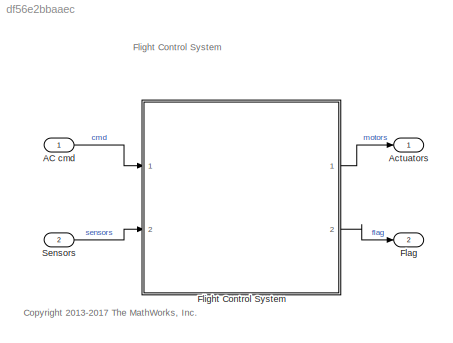
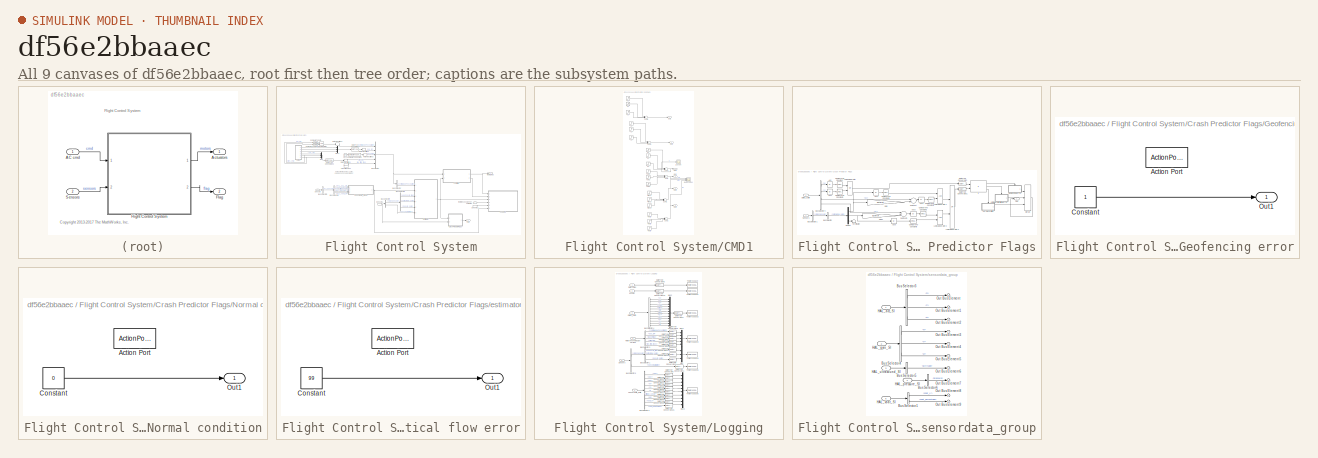
[diagram: thumbnail index - all 9 canvases of the model, root first then tree order]
MODEL slx_df56e2bbaaec
KIND model
CONFIG AbsTol = auto
CONFIG EnableMultiTasking = on
CONFIG FixedStep = Ts
CONFIG MaxStep = auto
CONFIG MinStep = auto
CONFIG RelTol = 1e-3
CONFIG SampleTimeConstraint = Unconstrained
CONFIG Solver = ode3
CONFIG SolverName = ode3
CONFIG StartTime = 0
CONFIG StopTime = TFinal
BLOCK [Inport] AC cmd
  BusOutputAsStruct = on
  IconDisplay = Port number
  OutDataTypeStr = Bus: CommandBus
BLOCK [Outport] Actuators
  IconDisplay = Port number
  OutDataTypeStr = single
  PortDimensions = 4
BLOCK [Outport] Flag
  IconDisplay = Port number
  OutDataTypeStr = uint8
  Port = 2
  PortDimensions = 1
BLOCK [SubSystem] Flight Control System
  Ports = [2, 2]
  RTWSystemCode = Reusable function
  RequestExecContextInheritance = off
BLOCK [BusCreator] Flight Control System/Bus Creator
  DisplayOption = bar
  InheritFromInputs = on
  Inputs = 5
  NonVirtualBus = on
  OutDataTypeStr = Bus: CommandBus
  Ports = [5, 1]
BLOCK [BusSelector] Flight Control System/Bus Selector
  OutputAsBus = off
  OutputSignals = controlModePosVSOrient
  Ports = [1, 1]
BLOCK [BusSelector] Flight Control System/Bus Selector1
  OutputAsBus = off
  OutputSignals = usePosVIS_flag,opticalFlow_data,posVIS_data
  Ports = [1, 3]
BLOCK [BusSelector] Flight Control System/Bus Selector2
  OutputAsBus = off
  OutputSignals = HAL_acc_SI,HAL_gyro_SI,HAL_ultrasound_SI,HAL_pressure_SI,HAL_vbat_SI
  Ports = [1, 5]
BLOCK [BusSelector] Flight Control System/Bus Selector3
  OutputAsBus = off
  OutputSignals = HALSensors
  Ports = [1, 1]
BLOCK [BusSelector] Flight Control System/Bus Selector4
  OutputAsBus = off
  OutputSignals = VisionSensors,SensorCalibration
  Ports = [1, 2]
BLOCK [SubSystem] Flight Control System/CMD1
  InitFcn = IntCmdFcn
  Ports = [0, 6]
  RequestExecContextInheritance = off
BLOCK [Outport] Flight Control System/CMD1/Out1
  IconDisplay = Port number
BLOCK [Outport] Flight Control System/CMD1/Out2
  IconDisplay = Port number
  Port = 2
BLOCK [Outport] Flight Control System/CMD1/Out3
  IconDisplay = Port number
  Port = 3
BLOCK [Outport] Flight Control System/CMD1/Out4
  IconDisplay = Port number
  Port = 4
BLOCK [Outport] Flight Control System/CMD1/Out5
  IconDisplay = Port number
  Port = 5
BLOCK [Outport] Flight Control System/CMD1/Out6
  IconDisplay = Port number
  Port = 6
BLOCK [Step] Flight Control System/CMD1/Pitch1
  After = Pitch1Value
  SampleTime = Ts
  Time = Pitch1StepTime
BLOCK [Step] Flight Control System/CMD1/Pitch2
  After = Pitch2Value
  SampleTime = Ts
  Time = Pitch2StepTime
BLOCK [Step] Flight Control System/CMD1/Pitch3
  After = Pitch3Value
  SampleTime = Ts
  Time = Pitch3StepTime
BLOCK [Step] Flight Control System/CMD1/Roll1
  After = Roll1Value
  SampleTime = Ts
  Time = Roll1StepTime
BLOCK [Step] Flight Control System/CMD1/Roll2
  After = Roll2Value
  SampleTime = Ts
  Time = Roll2StepTime
BLOCK [Step] Flight Control System/CMD1/Roll3
  After = Roll3Value
  SampleTime = Ts
  Time = Roll3StepTime
BLOCK [Sum] Flight Control System/CMD1/Sum
  InputSameDT = off
  Inputs = +++
  OutDataTypeStr = Inherit: Inherit via internal rule
  Ports = [3, 1]
  SaturateOnIntegerOverflow = off
BLOCK [Sum] Flight Control System/CMD1/Sum1
  InputSameDT = off
  Inputs = +++
  OutDataTypeStr = Inherit: Inherit via internal rule
  Ports = [3, 1]
  SaturateOnIntegerOverflow = off
BLOCK [Sum] Flight Control System/CMD1/Sum2
  InputSameDT = off
  Inputs = +++
  OutDataTypeStr = Inherit: Inherit via internal rule
  Ports = [3, 1]
  SaturateOnIntegerOverflow = off
BLOCK [Sum] Flight Control System/CMD1/Sum3
  InputSameDT = off
  Inputs = +++
  OutDataTypeStr = Inherit: Inherit via internal rule
  Ports = [3, 1]
  SaturateOnIntegerOverflow = off
BLOCK [Sum] Flight Control System/CMD1/Sum4
  InputSameDT = off
  Inputs = +++
  OutDataTypeStr = Inherit: Inherit via internal rule
  Ports = [3, 1]
  SaturateOnIntegerOverflow = off
BLOCK [Sum] Flight Control System/CMD1/Sum5
  InputSameDT = off
  Inputs = +++
  OutDataTypeStr = Inherit: Inherit via internal rule
  Ports = [3, 1]
  SaturateOnIntegerOverflow = off
BLOCK [Step] Flight Control System/CMD1/X1
  After = X1Value
  SampleTime = 0
  Time = X1StepTime
BLOCK [Step] Flight Control System/CMD1/X2
  After = X2Value
  SampleTime = 0
  Time = X2StepTime
BLOCK [Step] Flight Control System/CMD1/X3
  After = X3Value
  SampleTime = 0
  Time = X3StepTime
BLOCK [Step] Flight Control System/CMD1/Y1
  After = Y1Value
  SampleTime = 0
  Time = Y1StepTime
BLOCK [Step] Flight Control System/CMD1/Y2
  After = Y2Value
  SampleTime = 0
  Time = Y2StepTime
BLOCK [Step] Flight Control System/CMD1/Y3
  After = Y3Value
  SampleTime = 0
  Time = Y3StepTime
BLOCK [Step] Flight Control System/CMD1/Yaw1
  After = Yaw1Value
  SampleTime = Ts
  Time = Yaw1StepTime
BLOCK [Step] Flight Control System/CMD1/Yaw2
  After = Yaw2Value
  SampleTime = Ts
  Time = Yaw2StepTime
BLOCK [Step] Flight Control System/CMD1/Yaw3
  After = Yaw3Value
  SampleTime = Ts
  Time = Yaw3StepTime
BLOCK [Scope] Flight Control System/CMD1/Z Scope
  Floating = off
  NumInputPorts = 1
  Ports = [1]
  ScopeSpecificationString = Simulink.scopes.TimeScopeBlockCfg('CurrentConfiguration', extmgr.ConfigurationSet(extmgr.Configuration('Core','General UI',true,'FigureColor',[1 1 1]),extmgr.Configuration('Core','Source UI',true),extmgr.Configuration('Sources','WiredSimulink',true,'DataLoggingVariableName','ScopeData1'),extmgr.Configuration('Visuals','Time Domain',true,'SerializedDisplays',{struct('MinYLimReal','-1.00000','MaxYLi...<+2286ch>
BLOCK [Step] Flight Control System/CMD1/Z1
  After = Z1Value
  SampleTime = 0
  Time = Z1StepTime
BLOCK [Step] Flight Control System/CMD1/Z2
  After = Z2Value
  SampleTime = 0
  Time = Z2StepTime
BLOCK [Step] Flight Control System/CMD1/Z3
  After = Z3Value
  SampleTime = 0
  Time = Z3StepTime
BLOCK [Scope] Flight Control System/CMD1/deg Scope1
  Floating = off
  NumInputPorts = 3
  Ports = [3]
  ScopeSpecificationString = Simulink.scopes.TimeScopeBlockCfg('CurrentConfiguration', extmgr.ConfigurationSet(extmgr.Configuration('Core','General UI',true,'FigureColor',[1 1 1]),extmgr.Configuration('Core','Source UI',true),extmgr.Configuration('Sources','WiredSimulink',true,'DataLoggingVariableName','ScopeData2'),extmgr.Configuration('Visuals','Time Domain',true,'SerializedDisplays',{struct('MinYLimReal','-1.00000','MaxYLi...<+2302ch>
BLOCK [Clock] Flight Control System/Clock
BLOCK [Reference] Flight Control System/Compare To Constant  REF=simulink/Logic and Bit
Operations/Compare
To Constant
  Ports = [1, 1]
  SourceBlock = simulink/Logic and Bit\nOperations/Compare\nTo Constant
  SourceProductBaseCode = SL
  SourceProductName = Simulink
  SourceType = Compare To Constant
BLOCK [Reference] Flight Control System/Compare To Zero  REF=simulink/Logic and Bit
Operations/Compare
To Zero
  Ports = [1, 1]
  SourceBlock = simulink/Logic and Bit\nOperations/Compare\nTo Zero
  SourceProductBaseCode = SL
  SourceProductName = Simulink
  SourceType = Compare To Zero
BLOCK [Reference] Flight Control System/Compare To Zero1  REF=simulink/Logic and Bit
Operations/Compare
To Zero
  Ports = [1, 1]
  SourceBlock = simulink/Logic and Bit\nOperations/Compare\nTo Zero
  SourceProductBaseCode = SL
  SourceProductName = Simulink
  SourceType = Compare To Zero
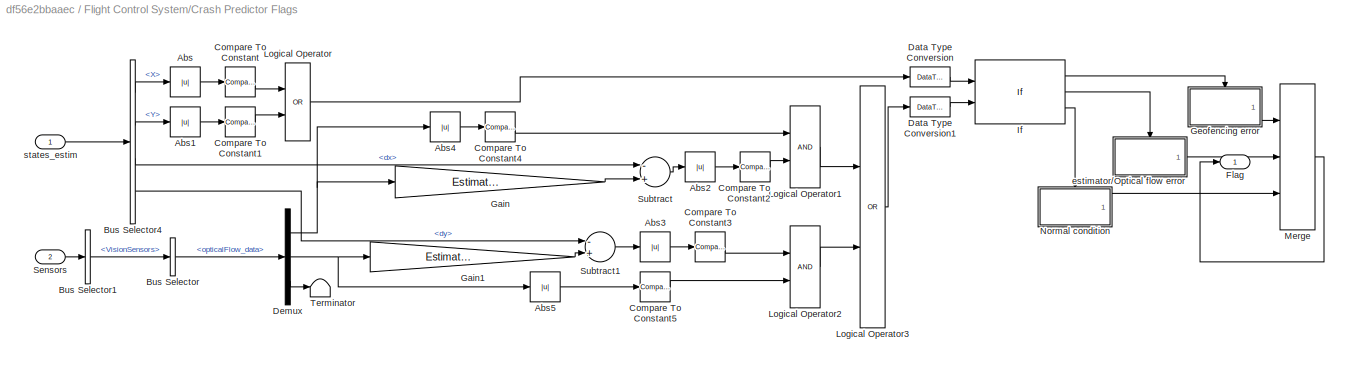
BLOCK [SubSystem] Flight Control System/Crash Predictor Flags
  Ports = [2, 1]
  RequestExecContextInheritance = off
BLOCK [Abs] Flight Control System/Crash Predictor Flags/Abs
  SaturateOnIntegerOverflow = off
BLOCK [Abs] Flight Control System/Crash Predictor Flags/Abs1
  SaturateOnIntegerOverflow = off
BLOCK [Abs] Flight Control System/Crash Predictor Flags/Abs2
  SaturateOnIntegerOverflow = off
BLOCK [Abs] Flight Control System/Crash Predictor Flags/Abs3
  SaturateOnIntegerOverflow = off
BLOCK [Abs] Flight Control System/Crash Predictor Flags/Abs4
  SaturateOnIntegerOverflow = off
BLOCK [Abs] Flight Control System/Crash Predictor Flags/Abs5
  SaturateOnIntegerOverflow = off
BLOCK [BusSelector] Flight Control System/Crash Predictor Flags/Bus Selector
  OutputAsBus = off
  OutputSignals = opticalFlow_data
  Ports = [1, 1]
BLOCK [BusSelector] Flight Control System/Crash Predictor Flags/Bus Selector1
  OutputAsBus = off
  OutputSignals = VisionSensors
  Ports = [1, 1]
BLOCK [BusSelector] Flight Control System/Crash Predictor Flags/Bus Selector4
  OutputAsBus = off
  OutputSignals = X,Y,dx,dy
  Ports = [1, 4]
BLOCK [Reference] Flight Control System/Crash Predictor Flags/Compare To Constant  REF=simulink/Logic and Bit
Operations/Compare
To Constant
  Ports = [1, 1]
  SourceBlock = simulink/Logic and Bit\nOperations/Compare\nTo Constant
  SourceProductBaseCode = SL
  SourceProductName = Simulink
  SourceType = Compare To Constant
BLOCK [Reference] Flight Control System/Crash Predictor Flags/Compare To Constant1  REF=simulink/Logic and Bit
Operations/Compare
To Constant
  Ports = [1, 1]
  SourceBlock = simulink/Logic and Bit\nOperations/Compare\nTo Constant
  SourceProductBaseCode = SL
  SourceProductName = Simulink
  SourceType = Compare To Constant
BLOCK [Reference] Flight Control System/Crash Predictor Flags/Compare To Constant2  REF=simulink/Logic and Bit
Operations/Compare
To Constant
  Ports = [1, 1]
  SourceBlock = simulink/Logic and Bit\nOperations/Compare\nTo Constant
  SourceProductBaseCode = SL
  SourceProductName = Simulink
  SourceType = Compare To Constant
BLOCK [Reference] Flight Control System/Crash Predictor Flags/Compare To Constant3  REF=simulink/Logic and Bit
Operations/Compare
To Constant
  Ports = [1, 1]
  SourceBlock = simulink/Logic and Bit\nOperations/Compare\nTo Constant
  SourceProductBaseCode = SL
  SourceProductName = Simulink
  SourceType = Compare To Constant
BLOCK [Reference] Flight Control System/Crash Predictor Flags/Compare To Constant4  REF=simulink/Logic and Bit
Operations/Compare
To Constant
  Ports = [1, 1]
  SourceBlock = simulink/Logic and Bit\nOperations/Compare\nTo Constant
  SourceProductBaseCode = SL
  SourceProductName = Simulink
  SourceType = Compare To Constant
BLOCK [Reference] Flight Control System/Crash Predictor Flags/Compare To Constant5  REF=simulink/Logic and Bit
Operations/Compare
To Constant
  Ports = [1, 1]
  SourceBlock = simulink/Logic and Bit\nOperations/Compare\nTo Constant
  SourceProductBaseCode = SL
  SourceProductName = Simulink
  SourceType = Compare To Constant
BLOCK [DataTypeConversion] Flight Control System/Crash Predictor Flags/Data Type Conversion
  OutDataTypeStr = uint8
  RndMeth = Nearest
  SaturateOnIntegerOverflow = off
BLOCK [DataTypeConversion] Flight Control System/Crash Predictor Flags/Data Type Conversion1
  OutDataTypeStr = uint8
  RndMeth = Nearest
  SaturateOnIntegerOverflow = off
BLOCK [Demux] Flight Control System/Crash Predictor Flags/Demux
  DisplayOption = bar
  Outputs = 3
  Ports = [1, 3]
BLOCK [Outport] Flight Control System/Crash Predictor Flags/Flag
  IconDisplay = Port number
BLOCK [Gain] Flight Control System/Crash Predictor Flags/Gain
  Gain = Estimator.pos.visDeltaXYMax
  OutDataTypeStr = Inherit: Inherit via internal rule
  ParamDataTypeStr = Inherit: Inherit via internal rule
  SaturateOnIntegerOverflow = off
BLOCK [Gain] Flight Control System/Crash Predictor Flags/Gain1
  Gain = Estimator.pos.visDeltaXYMax
  OutDataTypeStr = Inherit: Inherit via internal rule
  ParamDataTypeStr = Inherit: Inherit via internal rule
  SaturateOnIntegerOverflow = off
BLOCK [SubSystem] Flight Control System/Crash Predictor Flags/Geofencing error
  Ports = [0, 1, 0, 0, 0, 0, 0, 1]
  RequestExecContextInheritance = off
  TreatAsAtomicUnit = on
BLOCK [ActionPort] Flight Control System/Crash Predictor Flags/Geofencing error/Action Port
  ActionType = then
BLOCK [Constant] Flight Control System/Crash Predictor Flags/Geofencing error/Constant
  OutDataTypeStr = uint8
BLOCK [Outport] Flight Control System/Crash Predictor Flags/Geofencing error/Out1
  IconDisplay = Port number
BLOCK [If] Flight Control System/Crash Predictor Flags/If
  ElseIfExpressions = u2 > 0
  NumInputs = 2
  Ports = [2, 3]
BLOCK [Logic] Flight Control System/Crash Predictor Flags/Logical Operator
  AllPortsSameDT = off
  Operator = OR
  Ports = [2, 1]
BLOCK [Logic] Flight Control System/Crash Predictor Flags/Logical Operator1
  AllPortsSameDT = off
  OutDataTypeStr = boolean
  Ports = [2, 1]
BLOCK [Logic] Flight Control System/Crash Predictor Flags/Logical Operator2
  AllPortsSameDT = off
  OutDataTypeStr = boolean
  Ports = [2, 1]
BLOCK [Logic] Flight Control System/Crash Predictor Flags/Logical Operator3
  AllPortsSameDT = off
  Operator = OR
  Ports = [2, 1]
BLOCK [Merge] Flight Control System/Crash Predictor Flags/Merge
  InitialOutput = 0
  Inputs = 3
  Ports = [3, 1]
BLOCK [SubSystem] Flight Control System/Crash Predictor Flags/Normal condition
  Ports = [0, 1, 0, 0, 0, 0, 0, 1]
  RequestExecContextInheritance = off
  TreatAsAtomicUnit = on
BLOCK [ActionPort] Flight Control System/Crash Predictor Flags/Normal condition/Action Port
  ActionType = else
BLOCK [Constant] Flight Control System/Crash Predictor Flags/Normal condition/Constant
  OutDataTypeStr = uint8
  Value = 0
BLOCK [Outport] Flight Control System/Crash Predictor Flags/Normal condition/Out1
  IconDisplay = Port number
BLOCK [Inport] Flight Control System/Crash Predictor Flags/Sensors
  IconDisplay = Port number
  Port = 2
BLOCK [Sum] Flight Control System/Crash Predictor Flags/Subtract
  InputSameDT = off
  Inputs = -+
  OutDataTypeStr = Inherit: Inherit via internal rule
  Ports = [2, 1]
  SaturateOnIntegerOverflow = off
BLOCK [Sum] Flight Control System/Crash Predictor Flags/Subtract1
  InputSameDT = off
  Inputs = -+
  OutDataTypeStr = Inherit: Inherit via internal rule
  Ports = [2, 1]
  SaturateOnIntegerOverflow = off
BLOCK [Terminator] Flight Control System/Crash Predictor Flags/Terminator
BLOCK [SubSystem] Flight Control System/Crash Predictor Flags/estimator//Optical flow error
  Ports = [0, 1, 0, 0, 0, 0, 0, 1]
  RequestExecContextInheritance = off
  TreatAsAtomicUnit = on
BLOCK [ActionPort] Flight Control System/Crash Predictor Flags/estimator//Optical flow error/Action Port
  ActionType = elseif
BLOCK [Constant] Flight Control System/Crash Predictor Flags/estimator//Optical flow error/Constant
  OutDataTypeStr = uint8
  Value = 99
BLOCK [Outport] Flight Control System/Crash Predictor Flags/estimator//Optical flow error/Out1
  IconDisplay = Port number
BLOCK [Inport] Flight Control System/Crash Predictor Flags/states_estim
  IconDisplay = Port number
BLOCK [DataTypeConversion] Flight Control System/Data Type Conversion1
  OutDataTypeStr = single
  RndMeth = Floor
  SaturateOnIntegerOverflow = off
BLOCK [DataTypeConversion] Flight Control System/Data Type Conversion3
  OutDataTypeStr = single
  RndMeth = Floor
  SaturateOnIntegerOverflow = off
BLOCK [Outport] Flight Control System/Flag
  IconDisplay = Port number
  Port = 2
BLOCK [Reference] Flight Control System/Live Time Ticks  REF=simulink/Sources/Counter
Free-Running
  Ports = [0, 1]
  SourceBlock = simulink/Sources/Counter\nFree-Running
  SourceProductBaseCode = SL
  SourceProductName = Simulink
  SourceType = Counter Free-Running
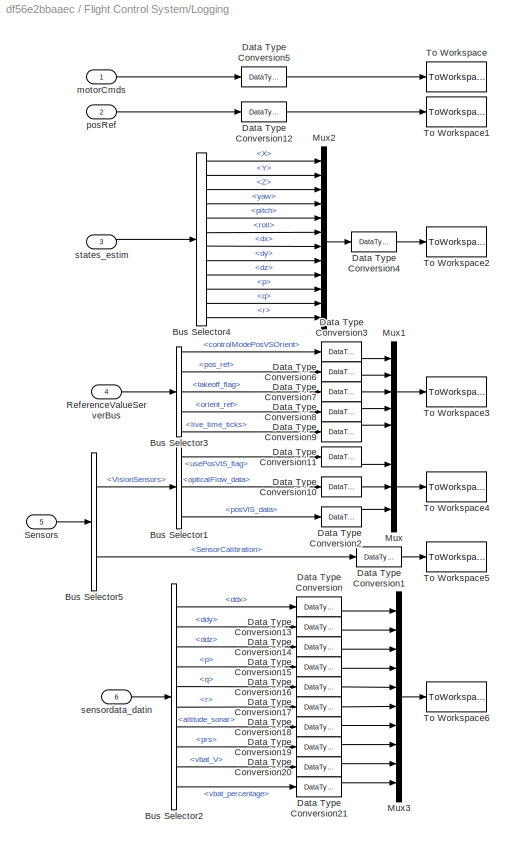
BLOCK [SubSystem] Flight Control System/Logging
  Ports = [6]
  RTWFcnNameOpts = Use subsystem name
  RTWSystemCode = Reusable function
  RequestExecContextInheritance = off
  TreatAsAtomicUnit = on
BLOCK [BusSelector] Flight Control System/Logging/Bus Selector1
  OutputAsBus = off
  OutputSignals = usePosVIS_flag,opticalFlow_data,posVIS_data
  Ports = [1, 3]
BLOCK [BusSelector] Flight Control System/Logging/Bus Selector2
  OutputAsBus = off
  OutputSignals = ddx,ddy,ddz,p,q,r,altitude_sonar,prs,vbat_V,vbat_percentage
  Ports = [1, 10]
BLOCK [BusSelector] Flight Control System/Logging/Bus Selector3
  OutputAsBus = off
  OutputSignals = controlModePosVSOrient,pos_ref,takeoff_flag,orient_ref,live_time_ticks
  Ports = [1, 5]
BLOCK [BusSelector] Flight Control System/Logging/Bus Selector4
  OutputAsBus = off
  OutputSignals = X,Y,Z,yaw,pitch,roll,dx,dy,dz,p,q,r
  Ports = [1, 12]
BLOCK [BusSelector] Flight Control System/Logging/Bus Selector5
  OutputAsBus = off
  OutputSignals = VisionSensors,SensorCalibration
  Ports = [1, 2]
BLOCK [DataTypeConversion] Flight Control System/Logging/Data Type Conversion
  OutDataTypeStr = double
  RndMeth = Floor
  SaturateOnIntegerOverflow = off
BLOCK [DataTypeConversion] Flight Control System/Logging/Data Type Conversion1
  OutDataTypeStr = double
  RndMeth = Floor
  SaturateOnIntegerOverflow = off
BLOCK [DataTypeConversion] Flight Control System/Logging/Data Type Conversion10
  OutDataTypeStr = double
  RndMeth = Floor
  SaturateOnIntegerOverflow = off
BLOCK [DataTypeConversion] Flight Control System/Logging/Data Type Conversion11
  OutDataTypeStr = double
  RndMeth = Floor
  SaturateOnIntegerOverflow = off
BLOCK [DataTypeConversion] Flight Control System/Logging/Data Type Conversion12
  OutDataTypeStr = double
  RndMeth = Floor
  SaturateOnIntegerOverflow = off
BLOCK [DataTypeConversion] Flight Control System/Logging/Data Type Conversion13
  OutDataTypeStr = double
  RndMeth = Floor
  SaturateOnIntegerOverflow = off
BLOCK [DataTypeConversion] Flight Control System/Logging/Data Type Conversion14
  OutDataTypeStr = double
  RndMeth = Floor
  SaturateOnIntegerOverflow = off
BLOCK [DataTypeConversion] Flight Control System/Logging/Data Type Conversion15
  OutDataTypeStr = double
  RndMeth = Floor
  SaturateOnIntegerOverflow = off
BLOCK [DataTypeConversion] Flight Control System/Logging/Data Type Conversion16
  OutDataTypeStr = double
  RndMeth = Floor
  SaturateOnIntegerOverflow = off
BLOCK [DataTypeConversion] Flight Control System/Logging/Data Type Conversion17
  OutDataTypeStr = double
  RndMeth = Floor
  SaturateOnIntegerOverflow = off
BLOCK [DataTypeConversion] Flight Control System/Logging/Data Type Conversion18
  OutDataTypeStr = double
  RndMeth = Floor
  SaturateOnIntegerOverflow = off
BLOCK [DataTypeConversion] Flight Control System/Logging/Data Type Conversion19
  OutDataTypeStr = double
  RndMeth = Floor
  SaturateOnIntegerOverflow = off
BLOCK [DataTypeConversion] Flight Control System/Logging/Data Type Conversion2
  OutDataTypeStr = double
  RndMeth = Floor
  SaturateOnIntegerOverflow = off
BLOCK [DataTypeConversion] Flight Control System/Logging/Data Type Conversion20
  OutDataTypeStr = double
  RndMeth = Floor
  SaturateOnIntegerOverflow = off
BLOCK [DataTypeConversion] Flight Control System/Logging/Data Type Conversion21
  OutDataTypeStr = double
  RndMeth = Floor
  SaturateOnIntegerOverflow = off
BLOCK [DataTypeConversion] Flight Control System/Logging/Data Type Conversion3
  OutDataTypeStr = double
  RndMeth = Floor
  SaturateOnIntegerOverflow = off
BLOCK [DataTypeConversion] Flight Control System/Logging/Data Type Conversion4
  OutDataTypeStr = double
  RndMeth = Floor
  SaturateOnIntegerOverflow = off
BLOCK [DataTypeConversion] Flight Control System/Logging/Data Type Conversion5
  OutDataTypeStr = double
  RndMeth = Floor
  SaturateOnIntegerOverflow = off
BLOCK [DataTypeConversion] Flight Control System/Logging/Data Type Conversion6
  OutDataTypeStr = double
  RndMeth = Floor
  SaturateOnIntegerOverflow = off
BLOCK [DataTypeConversion] Flight Control System/Logging/Data Type Conversion7
  OutDataTypeStr = double
  RndMeth = Floor
  SaturateOnIntegerOverflow = off
BLOCK [DataTypeConversion] Flight Control System/Logging/Data Type Conversion8
  OutDataTypeStr = double
  RndMeth = Floor
  SaturateOnIntegerOverflow = off
BLOCK [DataTypeConversion] Flight Control System/Logging/Data Type Conversion9
  OutDataTypeStr = double
  RndMeth = Floor
  SaturateOnIntegerOverflow = off
BLOCK [Mux] Flight Control System/Logging/Mux
  DisplayOption = bar
  Inputs = 3
  Ports = [3, 1]
BLOCK [Mux] Flight Control System/Logging/Mux1
  DisplayOption = bar
  Inputs = 5
  Ports = [5, 1]
BLOCK [Mux] Flight Control System/Logging/Mux2
  DisplayOption = bar
  Inputs = 12
  Ports = [12, 1]
BLOCK [Mux] Flight Control System/Logging/Mux3
  DisplayOption = bar
  Inputs = 10
  Ports = [10, 1]
BLOCK [Inport] Flight Control System/Logging/ReferenceValueServerBus
  BusOutputAsStruct = on
  IconDisplay = Port number
  OutDataTypeStr = Bus: CommandBus
  Port = 4
BLOCK [Inport] Flight Control System/Logging/Sensors
  IconDisplay = Port number
  OutDataTypeStr = Bus: SensorsBus
  Port = 5
BLOCK [ToWorkspace] Flight Control System/Logging/To Workspace
  FixptAsFi = on
  MaxDataPoints = inf
  Ports = [1]
  SampleTime = -1
  Save2DSignal = 3-D array (concatenate along third dimension)
  SaveFormat = Structure With Time
  VariableName = motor
BLOCK [ToWorkspace] Flight Control System/Logging/To Workspace1
  FixptAsFi = on
  MaxDataPoints = inf
  Ports = [1]
  SampleTime = -1
  Save2DSignal = 3-D array (concatenate along third dimension)
  SaveFormat = Structure With Time
  VariableName = posref
BLOCK [ToWorkspace] Flight Control System/Logging/To Workspace2
  FixptAsFi = on
  MaxDataPoints = inf
  Ports = [1]
  SampleTime = -1
  Save2DSignal = 3-D array (concatenate along third dimension)
  SaveFormat = Structure With Time
  VariableName = estim
BLOCK [ToWorkspace] Flight Control System/Logging/To Workspace3
  FixptAsFi = on
  MaxDataPoints = inf
  Ports = [1]
  SampleTime = -1
  Save2DSignal = 3-D array (concatenate along third dimension)
  SaveFormat = Structure With Time
  VariableName = cmd
BLOCK [ToWorkspace] Flight Control System/Logging/To Workspace4
  FixptAsFi = on
  MaxDataPoints = inf
  Ports = [1]
  SampleTime = -1
  Save2DSignal = 3-D array (concatenate along third dimension)
  SaveFormat = Structure With Time
  VariableName = optical
BLOCK [ToWorkspace] Flight Control System/Logging/To Workspace5
  FixptAsFi = on
  MaxDataPoints = inf
  Ports = [1]
  SampleTime = -1
  Save2DSignal = 3-D array (concatenate along third dimension)
  SaveFormat = Structure With Time
  VariableName = calib
BLOCK [ToWorkspace] Flight Control System/Logging/To Workspace6
  FixptAsFi = on
  MaxDataPoints = inf
  Ports = [1]
  SampleTime = -1
  Save2DSignal = 3-D array (concatenate along third dimension)
  SaveFormat = Structure With Time
  VariableName = sensor
BLOCK [Inport] Flight Control System/Logging/motorCmds
  IconDisplay = Port number
BLOCK [Inport] Flight Control System/Logging/posRef
  IconDisplay = Port number
  Port = 2
BLOCK [Inport] Flight Control System/Logging/sensordata_datin
  IconDisplay = Port number
  OutDataTypeStr = Bus: sensordata_t
  Port = 6
BLOCK [Inport] Flight Control System/Logging/states_estim
  BusOutputAsStruct = on
  IconDisplay = Port number
  OutDataTypeStr = Bus: statesEstim_t
  Port = 3
BLOCK [Logic] Flight Control System/Logical Operator
  AllPortsSameDT = off
  OutDataTypeStr = boolean
  Ports = [2, 1]
BLOCK [Mux] Flight Control System/Mux
  DisplayOption = bar
  Inputs = 3
  Ports = [3, 1]
BLOCK [Mux] Flight Control System/Mux1
  DisplayOption = bar
  Inputs = 3
  Ports = [3, 1]
BLOCK [RateTransition] Flight Control System/Rate Transition1
  OutPortSampleTime = Ts
BLOCK [RateTransition] Flight Control System/Rate Transition2
  OutPortSampleTime = Ts
BLOCK [RateTransition] Flight Control System/Rate Transition3
  OutPortSampleTime = Ts
BLOCK [RateTransition] Flight Control System/Rate Transition4
  OutPortSampleTime = Ts
BLOCK [Inport] Flight Control System/ReferenceValueServerCmds
  IconDisplay = Port number
  OutDataTypeStr = Bus: CommandBus
BLOCK [Inport] Flight Control System/Sensors
  BusOutputAsStruct = on
  IconDisplay = Port number
  OutDataTypeStr = Bus: SensorsBus
  Port = 2
BLOCK [InportShadow] Flight Control System/Sensors1
  BusOutputAsStruct = on
  IconDisplay = Port number
  OutDataTypeStr = Bus: SensorsBus
  Port = 2
BLOCK [InportShadow] Flight Control System/Sensors2
  BusOutputAsStruct = on
  IconDisplay = Port number
  OutDataTypeStr = Bus: SensorsBus
  Port = 2
BLOCK [ModelReference] Flight Control System/controller
  ModelNameDialog = flightController.slx
  ModelReferenceVersion = 1.121
  Ports = [2, 2]
BLOCK [ModelReference] Flight Control System/estimator
  ModelNameDialog = stateEstimator.slx
  ModelReferenceVersion = 1.42
  Ports = [6, 1]
BLOCK [Outport] Flight Control System/motorCmds
  IconDisplay = Port number
BLOCK [SubSystem] Flight Control System/sensordata_group
  Ports = [5, 1]
  RequestExecContextInheritance = off
BLOCK [BusSelector] Flight Control System/sensordata_group/Bus Selector1
  OutputAsBus = off
  OutputSignals = vbat_V,vbat_percentage
  Ports = [1, 2]
BLOCK [BusSelector] Flight Control System/sensordata_group/Bus Selector3
  OutputAsBus = off
  OutputSignals = x,y,z
  Ports = [1, 3]
BLOCK [BusSelector] Flight Control System/sensordata_group/Bus Selector4
  OutputAsBus = off
  OutputSignals = x,y,z
  Ports = [1, 3]
BLOCK [BusSelector] Flight Control System/sensordata_group/Bus Selector5
  OutputAsBus = off
  OutputSignals = altitude
  Ports = [1, 1]
BLOCK [BusSelector] Flight Control System/sensordata_group/Bus Selector6
  OutputAsBus = off
  OutputSignals = pressure
  Ports = [1, 1]
BLOCK [Inport] Flight Control System/sensordata_group/HAL_acc_SI
  IconDisplay = Port number
  OutDataTypeStr = Bus: HAL_acc_SI_t
BLOCK [Inport] Flight Control System/sensordata_group/HAL_gyro_SI
  IconDisplay = Port number
  OutDataTypeStr = Bus: HAL_gyro_SI_t
  Port = 2
BLOCK [Inport] Flight Control System/sensordata_group/HAL_pressure_SI
  IconDisplay = Port number
  OutDataTypeStr = Bus: HAL_pressure_SI_t
  Port = 4
BLOCK [Inport] Flight Control System/sensordata_group/HAL_ultrasound_SI
  IconDisplay = Port number
  OutDataTypeStr = Bus: HAL_ultrasound_SI_t
  Port = 3
BLOCK [Inport] Flight Control System/sensordata_group/HAL_vbat_SI
  IconDisplay = Port number
  OutDataTypeStr = Bus: HAL_vbat_SI_t
  Port = 5
BLOCK [Outport] Flight Control System/sensordata_group/Out Bus Element
  IconDisplay = Port number
BLOCK [Outport] Flight Control System/sensordata_group/Out Bus Element1
  IconDisplay = Port number
BLOCK [Outport] Flight Control System/sensordata_group/Out Bus Element2
  IconDisplay = Port number
BLOCK [Outport] Flight Control System/sensordata_group/Out Bus Element3
  IconDisplay = Port number
BLOCK [Outport] Flight Control System/sensordata_group/Out Bus Element4
  IconDisplay = Port number
BLOCK [Outport] Flight Control System/sensordata_group/Out Bus Element5
  IconDisplay = Port number
BLOCK [Outport] Flight Control System/sensordata_group/Out Bus Element6
  IconDisplay = Port number
BLOCK [Outport] Flight Control System/sensordata_group/Out Bus Element7
  IconDisplay = Port number
BLOCK [Outport] Flight Control System/sensordata_group/Out Bus Element8
  IconDisplay = Port number
BLOCK [Outport] Flight Control System/sensordata_group/Out Bus Element9
  IconDisplay = Port number
BLOCK [Inport] Sensors
  BusOutputAsStruct = on
  IconDisplay = Port number
  OutDataTypeStr = Bus: SensorsBus
  Port = 2
ANNOTATION (root): <copyright redacted>
ANNOTATION (root): Flight Control System
ANNOTATION Flight Control System: Derived from the work by Sertac Karaman and Fabian Riether
LINE AC cmd:1 -> Flight Control System:1
NET Flight Control System/Bus Creator:1 -> Flight Control System/Bus Selector:1, Flight Control System/controller:1
LINE Flight Control System/Bus Selector1:1 -> Flight Control System/estimator:3
LINE Flight Control System/Bus Selector1:2 -> Flight Control System/estimator:4
LINE Flight Control System/Bus Selector1:3 -> Flight Control System/estimator:5
LINE Flight Control System/Bus Selector2:1 -> Flight Control System/sensordata_group:1
LINE Flight Control System/Bus Selector2:2 -> Flight Control System/sensordata_group:2
LINE Flight Control System/Bus Selector2:3 -> Flight Control System/sensordata_group:3
LINE Flight Control System/Bus Selector2:4 -> Flight Control System/sensordata_group:4
LINE Flight Control System/Bus Selector2:5 -> Flight Control System/sensordata_group:5
LINE Flight Control System/Bus Selector3:1 -> Flight Control System/Bus Selector2:1
LINE Flight Control System/Bus Selector4:1 -> Flight Control System/Bus Selector1:1
LINE Flight Control System/Bus Selector4:2 -> Flight Control System/estimator:6
LINE Flight Control System/Bus Selector:1 -> Flight Control System/estimator:1
LINE Flight Control System/CMD1/Pitch1:1 -> Flight Control System/CMD1/Sum1:1
LINE Flight Control System/CMD1/Pitch2:1 -> Flight Control System/CMD1/Sum1:2
LINE Flight Control System/CMD1/Pitch3:1 -> Flight Control System/CMD1/Sum1:3
LINE Flight Control System/CMD1/Roll1:1 -> Flight Control System/CMD1/Sum2:1
LINE Flight Control System/CMD1/Roll2:1 -> Flight Control System/CMD1/Sum2:2
LINE Flight Control System/CMD1/Roll3:1 -> Flight Control System/CMD1/Sum2:3
NET Flight Control System/CMD1/Sum1:1 -> Flight Control System/CMD1/Out5:1, Flight Control System/CMD1/deg Scope1:2
NET Flight Control System/CMD1/Sum2:1 -> Flight Control System/CMD1/Out6:1, Flight Control System/CMD1/deg Scope1:3
NET Flight Control System/CMD1/Sum3:1 -> Flight Control System/CMD1/Out3:1, Flight Control System/CMD1/Z Scope:1
LINE Flight Control System/CMD1/Sum4:1 -> Flight Control System/CMD1/Out2:1
LINE Flight Control System/CMD1/Sum5:1 -> Flight Control System/CMD1/Out1:1
NET Flight Control System/CMD1/Sum:1 -> Flight Control System/CMD1/Out4:1, Flight Control System/CMD1/deg Scope1:1
LINE Flight Control System/CMD1/X1:1 -> Flight Control System/CMD1/Sum5:1
LINE Flight Control System/CMD1/X2:1 -> Flight Control System/CMD1/Sum5:2
LINE Flight Control System/CMD1/X3:1 -> Flight Control System/CMD1/Sum5:3
LINE Flight Control System/CMD1/Y1:1 -> Flight Control System/CMD1/Sum4:1
LINE Flight Control System/CMD1/Y2:1 -> Flight Control System/CMD1/Sum4:2
LINE Flight Control System/CMD1/Y3:1 -> Flight Control System/CMD1/Sum4:3
LINE Flight Control System/CMD1/Yaw1:1 -> Flight Control System/CMD1/Sum:1
LINE Flight Control System/CMD1/Yaw2:1 -> Flight Control System/CMD1/Sum:2
LINE Flight Control System/CMD1/Yaw3:1 -> Flight Control System/CMD1/Sum:3
LINE Flight Control System/CMD1/Z1:1 -> Flight Control System/CMD1/Sum3:1
LINE Flight Control System/CMD1/Z2:1 -> Flight Control System/CMD1/Sum3:2
LINE Flight Control System/CMD1/Z3:1 -> Flight Control System/CMD1/Sum3:3
LINE Flight Control System/CMD1:1 -> Flight Control System/Mux1:1
LINE Flight Control System/CMD1:2 -> Flight Control System/Mux1:2
LINE Flight Control System/CMD1:3 -> Flight Control System/Mux1:3
LINE Flight Control System/CMD1:4 -> Flight Control System/Mux:1
NET Flight Control System/CMD1:5 -> Flight Control System/Compare To Zero1:1, Flight Control System/Mux:2
NET Flight Control System/CMD1:6 -> Flight Control System/Compare To Zero:1, Flight Control System/Mux:3
LINE Flight Control System/Clock:1 -> Flight Control System/Compare To Constant:1
LINE Flight Control System/Compare To Constant:1 -> Flight Control System/Rate Transition3:1
LINE Flight Control System/Compare To Zero1:1 -> Flight Control System/Logical Operator:2
LINE Flight Control System/Compare To Zero:1 -> Flight Control System/Logical Operator:1
LINE Flight Control System/Crash Predictor Flags/Abs1:1 -> Flight Control System/Crash Predictor Flags/Compare To Constant1:1
LINE Flight Control System/Crash Predictor Flags/Abs2:1 -> Flight Control System/Crash Predictor Flags/Compare To Constant2:1
LINE Flight Control System/Crash Predictor Flags/Abs3:1 -> Flight Control System/Crash Predictor Flags/Compare To Constant3:1
LINE Flight Control System/Crash Predictor Flags/Abs4:1 -> Flight Control System/Crash Predictor Flags/Compare To Constant4:1
LINE Flight Control System/Crash Predictor Flags/Abs5:1 -> Flight Control System/Crash Predictor Flags/Compare To Constant5:1
LINE Flight Control System/Crash Predictor Flags/Abs:1 -> Flight Control System/Crash Predictor Flags/Compare To Constant:1
LINE Flight Control System/Crash Predictor Flags/Bus Selector1:1 -> Flight Control System/Crash Predictor Flags/Bus Selector:1
LINE Flight Control System/Crash Predictor Flags/Bus Selector4:1 -> Flight Control System/Crash Predictor Flags/Abs:1
LINE Flight Control System/Crash Predictor Flags/Bus Selector4:2 -> Flight Control System/Crash Predictor Flags/Abs1:1
LINE Flight Control System/Crash Predictor Flags/Bus Selector4:3 -> Flight Control System/Crash Predictor Flags/Subtract:1
LINE Flight Control System/Crash Predictor Flags/Bus Selector4:4 -> Flight Control System/Crash Predictor Flags/Subtract1:1
LINE Flight Control System/Crash Predictor Flags/Bus Selector:1 -> Flight Control System/Crash Predictor Flags/Demux:1
LINE Flight Control System/Crash Predictor Flags/Compare To Constant1:1 -> Flight Control System/Crash Predictor Flags/Logical Operator:2
LINE Flight Control System/Crash Predictor Flags/Compare To Constant2:1 -> Flight Control System/Crash Predictor Flags/Logical Operator1:2
LINE Flight Control System/Crash Predictor Flags/Compare To Constant3:1 -> Flight Control System/Crash Predictor Flags/Logical Operator2:1
LINE Flight Control System/Crash Predictor Flags/Compare To Constant4:1 -> Flight Control System/Crash Predictor Flags/Logical Operator1:1
LINE Flight Control System/Crash Predictor Flags/Compare To Constant5:1 -> Flight Control System/Crash Predictor Flags/Logical Operator2:2
LINE Flight Control System/Crash Predictor Flags/Compare To Constant:1 -> Flight Control System/Crash Predictor Flags/Logical Operator:1
LINE Flight Control System/Crash Predictor Flags/Data Type Conversion1:1 -> Flight Control System/Crash Predictor Flags/If:2
LINE Flight Control System/Crash Predictor Flags/Data Type Conversion:1 -> Flight Control System/Crash Predictor Flags/If:1
NET Flight Control System/Crash Predictor Flags/Demux:1 -> Flight Control System/Crash Predictor Flags/Abs4:1, Flight Control System/Crash Predictor Flags/Gain:1
NET Flight Control System/Crash Predictor Flags/Demux:2 -> Flight Control System/Crash Predictor Flags/Abs5:1, Flight Control System/Crash Predictor Flags/Gain1:1
LINE Flight Control System/Crash Predictor Flags/Demux:3 -> Flight Control System/Crash Predictor Flags/Terminator:1
LINE Flight Control System/Crash Predictor Flags/Gain1:1 -> Flight Control System/Crash Predictor Flags/Subtract1:2
LINE Flight Control System/Crash Predictor Flags/Gain:1 -> Flight Control System/Crash Predictor Flags/Subtract:2
LINE Flight Control System/Crash Predictor Flags/Geofencing error/Constant:1 -> Flight Control System/Crash Predictor Flags/Geofencing error/Out1:1
LINE Flight Control System/Crash Predictor Flags/Geofencing error:1 -> Flight Control System/Crash Predictor Flags/Merge:1
LINE Flight Control System/Crash Predictor Flags/If:1 -> Flight Control System/Crash Predictor Flags/Geofencing error:ifaction
LINE Flight Control System/Crash Predictor Flags/If:2 -> Flight Control System/Crash Predictor Flags/estimator//Optical flow error:ifaction
LINE Flight Control System/Crash Predictor Flags/If:3 -> Flight Control System/Crash Predictor Flags/Normal condition:ifaction
LINE Flight Control System/Crash Predictor Flags/Logical Operator1:1 -> Flight Control System/Crash Predictor Flags/Logical Operator3:1
LINE Flight Control System/Crash Predictor Flags/Logical Operator2:1 -> Flight Control System/Crash Predictor Flags/Logical Operator3:2
LINE Flight Control System/Crash Predictor Flags/Logical Operator3:1 -> Flight Control System/Crash Predictor Flags/Data Type Conversion1:1
LINE Flight Control System/Crash Predictor Flags/Logical Operator:1 -> Flight Control System/Crash Predictor Flags/Data Type Conversion:1
LINE Flight Control System/Crash Predictor Flags/Merge:1 -> Flight Control System/Crash Predictor Flags/Flag:1
LINE Flight Control System/Crash Predictor Flags/Normal condition/Constant:1 -> Flight Control System/Crash Predictor Flags/Normal condition/Out1:1
LINE Flight Control System/Crash Predictor Flags/Normal condition:1 -> Flight Control System/Crash Predictor Flags/Merge:3
LINE Flight Control System/Crash Predictor Flags/Sensors:1 -> Flight Control System/Crash Predictor Flags/Bus Selector1:1
LINE Flight Control System/Crash Predictor Flags/Subtract1:1 -> Flight Control System/Crash Predictor Flags/Abs3:1
LINE Flight Control System/Crash Predictor Flags/Subtract:1 -> Flight Control System/Crash Predictor Flags/Abs2:1
LINE Flight Control System/Crash Predictor Flags/estimator//Optical flow error/Constant:1 -> Flight Control System/Crash Predictor Flags/estimator//Optical flow error/Out1:1
LINE Flight Control System/Crash Predictor Flags/estimator//Optical flow error:1 -> Flight Control System/Crash Predictor Flags/Merge:2
LINE Flight Control System/Crash Predictor Flags/states_estim:1 -> Flight Control System/Crash Predictor Flags/Bus Selector4:1
LINE Flight Control System/Crash Predictor Flags:1 -> Flight Control System/Flag:1
LINE Flight Control System/Data Type Conversion1:1 -> Flight Control System/Rate Transition2:1
LINE Flight Control System/Data Type Conversion3:1 -> Flight Control System/Rate Transition1:1
LINE Flight Control System/Live Time Ticks:1 -> Flight Control System/Bus Creator:5
LINE Flight Control System/Logging/Bus Selector1:1 -> Flight Control System/Logging/Data Type Conversion11:1
LINE Flight Control System/Logging/Bus Selector1:2 -> Flight Control System/Logging/Data Type Conversion10:1
LINE Flight Control System/Logging/Bus Selector1:3 -> Flight Control System/Logging/Data Type Conversion2:1
LINE Flight Control System/Logging/Bus Selector2:1 -> Flight Control System/Logging/Data Type Conversion:1
LINE Flight Control System/Logging/Bus Selector2:10 -> Flight Control System/Logging/Data Type Conversion21:1
LINE Flight Control System/Logging/Bus Selector2:2 -> Flight Control System/Logging/Data Type Conversion13:1
LINE Flight Control System/Logging/Bus Selector2:3 -> Flight Control System/Logging/Data Type Conversion14:1
LINE Flight Control System/Logging/Bus Selector2:4 -> Flight Control System/Logging/Data Type Conversion15:1
LINE Flight Control System/Logging/Bus Selector2:5 -> Flight Control System/Logging/Data Type Conversion16:1
LINE Flight Control System/Logging/Bus Selector2:6 -> Flight Control System/Logging/Data Type Conversion17:1
LINE Flight Control System/Logging/Bus Selector2:7 -> Flight Control System/Logging/Data Type Conversion18:1
LINE Flight Control System/Logging/Bus Selector2:8 -> Flight Control System/Logging/Data Type Conversion19:1
LINE Flight Control System/Logging/Bus Selector2:9 -> Flight Control System/Logging/Data Type Conversion20:1
LINE Flight Control System/Logging/Bus Selector3:1 -> Flight Control System/Logging/Data Type Conversion3:1
LINE Flight Control System/Logging/Bus Selector3:2 -> Flight Control System/Logging/Data Type Conversion6:1
LINE Flight Control System/Logging/Bus Selector3:3 -> Flight Control System/Logging/Data Type Conversion7:1
LINE Flight Control System/Logging/Bus Selector3:4 -> Flight Control System/Logging/Data Type Conversion8:1
LINE Flight Control System/Logging/Bus Selector3:5 -> Flight Control System/Logging/Data Type Conversion9:1
LINE Flight Control System/Logging/Bus Selector4:1 -> Flight Control System/Logging/Mux2:1
LINE Flight Control System/Logging/Bus Selector4:10 -> Flight Control System/Logging/Mux2:10
LINE Flight Control System/Logging/Bus Selector4:11 -> Flight Control System/Logging/Mux2:11
LINE Flight Control System/Logging/Bus Selector4:12 -> Flight Control System/Logging/Mux2:12
LINE Flight Control System/Logging/Bus Selector4:2 -> Flight Control System/Logging/Mux2:2
LINE Flight Control System/Logging/Bus Selector4:3 -> Flight Control System/Logging/Mux2:3
LINE Flight Control System/Logging/Bus Selector4:4 -> Flight Control System/Logging/Mux2:4
LINE Flight Control System/Logging/Bus Selector4:5 -> Flight Control System/Logging/Mux2:5
LINE Flight Control System/Logging/Bus Selector4:6 -> Flight Control System/Logging/Mux2:6
LINE Flight Control System/Logging/Bus Selector4:7 -> Flight Control System/Logging/Mux2:7
LINE Flight Control System/Logging/Bus Selector4:8 -> Flight Control System/Logging/Mux2:8
LINE Flight Control System/Logging/Bus Selector4:9 -> Flight Control System/Logging/Mux2:9
LINE Flight Control System/Logging/Bus Selector5:1 -> Flight Control System/Logging/Bus Selector1:1
LINE Flight Control System/Logging/Bus Selector5:2 -> Flight Control System/Logging/Data Type Conversion1:1
LINE Flight Control System/Logging/Data Type Conversion10:1 -> Flight Control System/Logging/Mux:2
LINE Flight Control System/Logging/Data Type Conversion11:1 -> Flight Control System/Logging/Mux:1
LINE Flight Control System/Logging/Data Type Conversion12:1 -> Flight Control System/Logging/To Workspace1:1
LINE Flight Control System/Logging/Data Type Conversion13:1 -> Flight Control System/Logging/Mux3:2
LINE Flight Control System/Logging/Data Type Conversion14:1 -> Flight Control System/Logging/Mux3:3
LINE Flight Control System/Logging/Data Type Conversion15:1 -> Flight Control System/Logging/Mux3:4
LINE Flight Control System/Logging/Data Type Conversion16:1 -> Flight Control System/Logging/Mux3:5
LINE Flight Control System/Logging/Data Type Conversion17:1 -> Flight Control System/Logging/Mux3:6
LINE Flight Control System/Logging/Data Type Conversion18:1 -> Flight Control System/Logging/Mux3:7
LINE Flight Control System/Logging/Data Type Conversion19:1 -> Flight Control System/Logging/Mux3:8
LINE Flight Control System/Logging/Data Type Conversion1:1 -> Flight Control System/Logging/To Workspace5:1
LINE Flight Control System/Logging/Data Type Conversion20:1 -> Flight Control System/Logging/Mux3:9
LINE Flight Control System/Logging/Data Type Conversion21:1 -> Flight Control System/Logging/Mux3:10
LINE Flight Control System/Logging/Data Type Conversion2:1 -> Flight Control System/Logging/Mux:3
LINE Flight Control System/Logging/Data Type Conversion3:1 -> Flight Control System/Logging/Mux1:1
LINE Flight Control System/Logging/Data Type Conversion4:1 -> Flight Control System/Logging/To Workspace2:1
LINE Flight Control System/Logging/Data Type Conversion5:1 -> Flight Control System/Logging/To Workspace:1
LINE Flight Control System/Logging/Data Type Conversion6:1 -> Flight Control System/Logging/Mux1:2
LINE Flight Control System/Logging/Data Type Conversion7:1 -> Flight Control System/Logging/Mux1:3
LINE Flight Control System/Logging/Data Type Conversion8:1 -> Flight Control System/Logging/Mux1:4
LINE Flight Control System/Logging/Data Type Conversion9:1 -> Flight Control System/Logging/Mux1:5
LINE Flight Control System/Logging/Data Type Conversion:1 -> Flight Control System/Logging/Mux3:1
LINE Flight Control System/Logging/Mux1:1 -> Flight Control System/Logging/To Workspace3:1
LINE Flight Control System/Logging/Mux2:1 -> Flight Control System/Logging/Data Type Conversion4:1
LINE Flight Control System/Logging/Mux3:1 -> Flight Control System/Logging/To Workspace6:1
LINE Flight Control System/Logging/Mux:1 -> Flight Control System/Logging/To Workspace4:1
LINE Flight Control System/Logging/ReferenceValueServerBus:1 -> Flight Control System/Logging/Bus Selector3:1
LINE Flight Control System/Logging/Sensors:1 -> Flight Control System/Logging/Bus Selector5:1
LINE Flight Control System/Logging/motorCmds:1 -> Flight Control System/Logging/Data Type Conversion5:1
LINE Flight Control System/Logging/posRef:1 -> Flight Control System/Logging/Data Type Conversion12:1
LINE Flight Control System/Logging/sensordata_datin:1 -> Flight Control System/Logging/Bus Selector2:1
LINE Flight Control System/Logging/states_estim:1 -> Flight Control System/Logging/Bus Selector4:1
LINE Flight Control System/Logical Operator:1 -> Flight Control System/Rate Transition4:1
LINE Flight Control System/Mux1:1 -> Flight Control System/Data Type Conversion1:1
LINE Flight Control System/Mux:1 -> Flight Control System/Data Type Conversion3:1
LINE Flight Control System/Rate Transition1:1 -> Flight Control System/Bus Creator:4
LINE Flight Control System/Rate Transition2:1 -> Flight Control System/Bus Creator:2
LINE Flight Control System/Rate Transition3:1 -> Flight Control System/Bus Creator:3
LINE Flight Control System/Rate Transition4:1 -> Flight Control System/Bus Creator:1
LINE Flight Control System/ReferenceValueServerCmds:1 -> Flight Control System/Logging:4
NET Flight Control System/Sensors1:1 -> Flight Control System/Bus Selector4:1, Flight Control System/Crash Predictor Flags:2
LINE Flight Control System/Sensors2:1 -> Flight Control System/Logging:5
LINE Flight Control System/Sensors:1 -> Flight Control System/Bus Selector3:1
NET Flight Control System/controller:1 -> Flight Control System/Logging:1, Flight Control System/motorCmds:1
LINE Flight Control System/controller:2 -> Flight Control System/Logging:2
NET Flight Control System/estimator:1 -> Flight Control System/Crash Predictor Flags:1, Flight Control System/Logging:3, Flight Control System/controller:2
LINE Flight Control System/sensordata_group/Bus Selector1:1 -> Flight Control System/sensordata_group/Out Bus Element8:1
LINE Flight Control System/sensordata_group/Bus Selector1:2 -> Flight Control System/sensordata_group/Out Bus Element9:1
LINE Flight Control System/sensordata_group/Bus Selector3:1 -> Flight Control System/sensordata_group/Out Bus Element:1
LINE Flight Control System/sensordata_group/Bus Selector3:2 -> Flight Control System/sensordata_group/Out Bus Element1:1
LINE Flight Control System/sensordata_group/Bus Selector3:3 -> Flight Control System/sensordata_group/Out Bus Element2:1
LINE Flight Control System/sensordata_group/Bus Selector4:1 -> Flight Control System/sensordata_group/Out Bus Element3:1
LINE Flight Control System/sensordata_group/Bus Selector4:2 -> Flight Control System/sensordata_group/Out Bus Element4:1
LINE Flight Control System/sensordata_group/Bus Selector4:3 -> Flight Control System/sensordata_group/Out Bus Element5:1
LINE Flight Control System/sensordata_group/Bus Selector5:1 -> Flight Control System/sensordata_group/Out Bus Element6:1
LINE Flight Control System/sensordata_group/Bus Selector6:1 -> Flight Control System/sensordata_group/Out Bus Element7:1
LINE Flight Control System/sensordata_group/HAL_acc_SI:1 -> Flight Control System/sensordata_group/Bus Selector3:1
LINE Flight Control System/sensordata_group/HAL_gyro_SI:1 -> Flight Control System/sensordata_group/Bus Selector4:1
LINE Flight Control System/sensordata_group/HAL_pressure_SI:1 -> Flight Control System/sensordata_group/Bus Selector6:1
LINE Flight Control System/sensordata_group/HAL_ultrasound_SI:1 -> Flight Control System/sensordata_group/Bus Selector5:1
LINE Flight Control System/sensordata_group/HAL_vbat_SI:1 -> Flight Control System/sensordata_group/Bus Selector1:1
NET Flight Control System/sensordata_group:1 -> Flight Control System/Logging:6, Flight Control System/estimator:2
LINE Flight Control System:1 -> Actuators:1
LINE Flight Control System:2 -> Flag:1
LINE Sensors:1 -> Flight Control System:2
note: NET lines group one-source signal fan-out (src -> all destinations, sorted); 1:1 wires keep LINE
